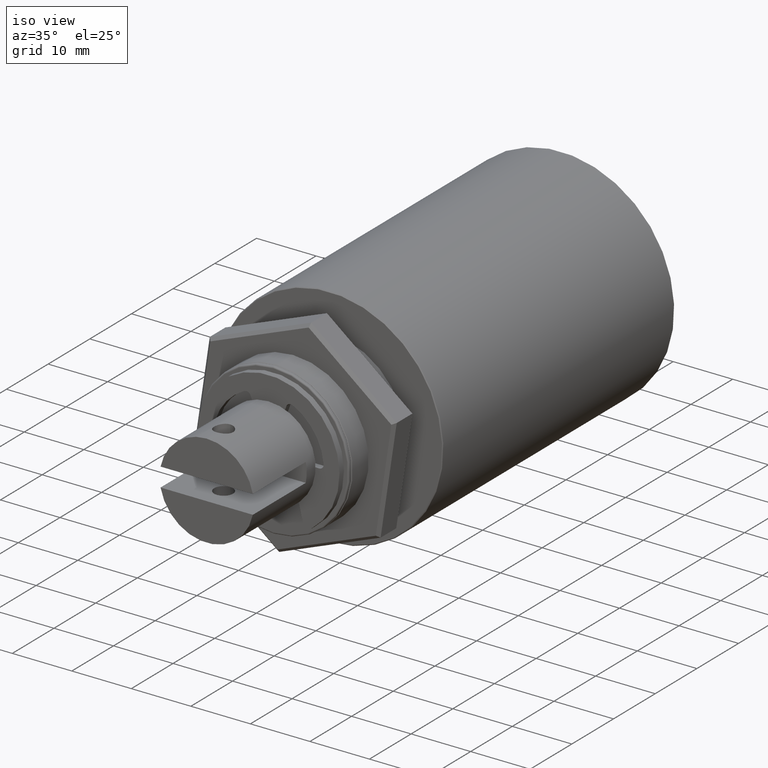
[diagram: clean part render]
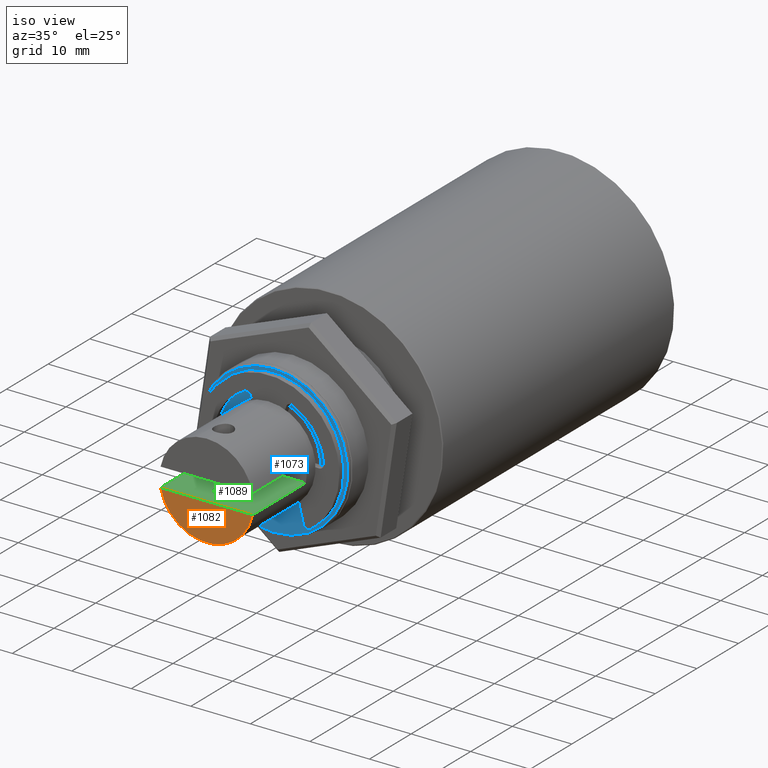
[diagram: same view with three faces highlighted in distinct colors, each labeled with its STEP entity id]
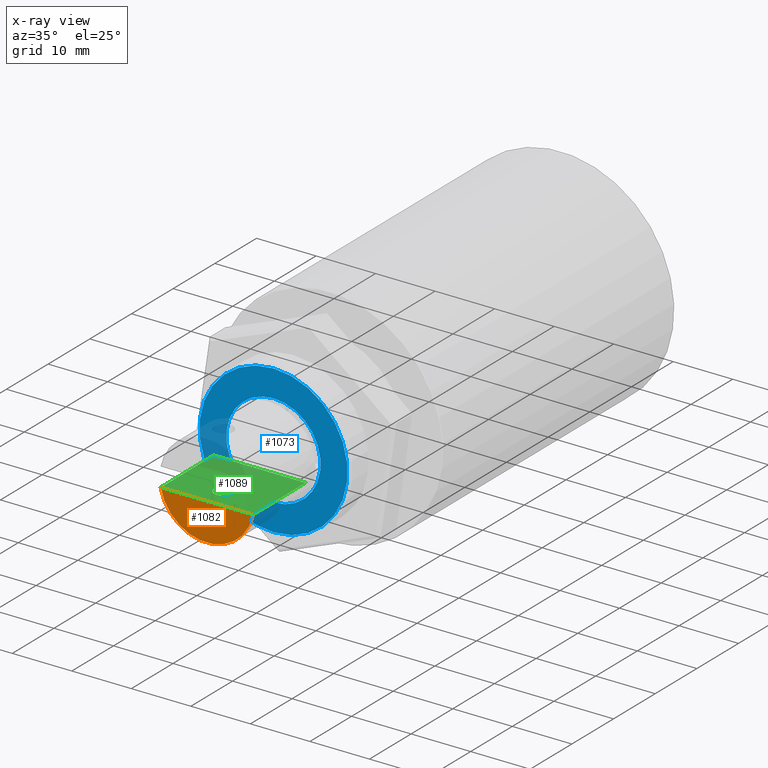
[diagram: x-ray of the same camera — body ghosted, the three highlighted faces saturated]
A machine part, iso view with three faces highlighted in distinct colors.
The next image is the same camera in x-ray (body ghosted, the three faces saturated) — at least one of them is partly hidden behind the body in this view.
Their STEP definitions:

[orange] entity #1082 — the highlighted planar face has unit normal (0, 1, -0).
#69=CIRCLE('',#1224,0.0079121);
#255=ORIENTED_EDGE('',*,*,#465,.T.);
#256=ORIENTED_EDGE('',*,*,#474,.T.);
#465=EDGE_CURVE('',#584,#583,#69,.T.);
#474=EDGE_CURVE('',#583,#584,#690,.T.);
#583=VERTEX_POINT('',#1804);
#584=VERTEX_POINT('',#1806);
#690=LINE('',#1827,#770);
#770=VECTOR('',#1466,1.);
#849=EDGE_LOOP('',(#255,#256));
#952=FACE_BOUND('',#849,.T.);
#1032=PLANE('',#1234);
#1082=ADVANCED_FACE('',(#952),#1032,.F.);
#1224=AXIS2_PLACEMENT_3D('',#1805,#1441,#1442);
#1234=AXIS2_PLACEMENT_3D('',#1826,#1464,#1465);
#1441=DIRECTION('',(0.,0.,-1.));
#1442=DIRECTION('',(-1.,0.,0.));
#1464=DIRECTION('',(0.,0.,1.));
#1465=DIRECTION('',(1.,0.,0.));
#1466=DIRECTION('',(0.,1.,0.));
#1804=CARTESIAN_POINT('',(0.0015875,-0.00775120443286075,-0.016764));
#1805=CARTESIAN_POINT('',(0.,0.,-0.016764));
#1806=CARTESIAN_POINT('',(0.0015875,0.00775120443286075,-0.016764));
#1826=CARTESIAN_POINT('',(0.00395605,0.,-0.016764));
#1827=CARTESIAN_POINT('',(0.0015875,0.,-0.016764));

[blue] entity #1073 — the highlighted planar face has unit normal (-0, -1, 0).
#63=CIRCLE('',#1212,0.0079121);
#64=CIRCLE('',#1214,0.012446);
#229=ORIENTED_EDGE('',*,*,#456,.T.);
#230=ORIENTED_EDGE('',*,*,#455,.F.);
#455=EDGE_CURVE('',#573,#573,#63,.T.);
#456=EDGE_CURVE('',#574,#574,#64,.T.);
#573=VERTEX_POINT('',#1759);
#574=VERTEX_POINT('',#1762);
#831=EDGE_LOOP('',(#229));
#832=EDGE_LOOP('',(#230));
#933=FACE_BOUND('',#831,.T.);
#934=FACE_BOUND('',#832,.T.);
#1030=PLANE('',#1213);
#1073=ADVANCED_FACE('',(#933,#934),#1030,.T.);
#1212=AXIS2_PLACEMENT_3D('',#1758,#1415,#1416);
#1213=AXIS2_PLACEMENT_3D('',#1760,#1417,#1418);
#1214=AXIS2_PLACEMENT_3D('',#1761,#1419,#1420);
#1415=DIRECTION('',(0.,0.,-1.));
#1416=DIRECTION('',(-1.,0.,0.));
#1417=DIRECTION('',(0.,0.,-1.));
#1418=DIRECTION('',(-1.,0.,0.));
#1419=DIRECTION('',(0.,0.,-1.));
#1420=DIRECTION('',(-1.,0.,0.));
#1758=CARTESIAN_POINT('',(0.,0.,-0.000743169806373116));
#1759=CARTESIAN_POINT('',(-0.0079121,0.,-0.000743169806373116));
#1760=CARTESIAN_POINT('',(0.01030605,0.,-0.000743169806373115));
#1761=CARTESIAN_POINT('',(0.,0.,-0.000743169806373115));
#1762=CARTESIAN_POINT('',(-0.012446,0.,-0.000743169806373115));

[green] entity #1089 — the highlighted planar face has unit normal (-0, 0, -1).
#77=CIRCLE('',#1241,0.0015875);
#274=ORIENTED_EDGE('',*,*,#477,.T.);
#275=ORIENTED_EDGE('',*,*,#479,.T.);
#276=ORIENTED_EDGE('',*,*,#466,.F.);
#277=ORIENTED_EDGE('',*,*,#474,.F.);
#278=ORIENTED_EDGE('',*,*,#464,.F.);
#464=EDGE_CURVE('',#582,#583,#686,.T.);
#466=EDGE_CURVE('',#584,#585,#687,.F.);
#474=EDGE_CURVE('',#583,#584,#690,.T.);
#477=EDGE_CURVE('',#594,#594,#77,.T.);
#479=EDGE_CURVE('',#582,#585,#692,.T.);
#582=VERTEX_POINT('',#1802);
#583=VERTEX_POINT('',#1804);
#584=VERTEX_POINT('',#1806);
#585=VERTEX_POINT('',#1808);
#594=VERTEX_POINT('',#1837);
#686=LINE('',#1803,#766);
#687=LINE('',#1807,#767);
#690=LINE('',#1827,#770);
#692=LINE('',#1840,#772);
#766=VECTOR('',#1440,1.);
#767=VECTOR('',#1443,1.);
#770=VECTOR('',#1466,1.);
#772=VECTOR('',#1484,1.);
#861=EDGE_LOOP('',(#274));
#862=EDGE_LOOP('',(#275,#276,#277,#278));
#964=FACE_BOUND('',#861,.T.);
#965=FACE_BOUND('',#862,.T.);
#1037=PLANE('',#1244);
#1089=ADVANCED_FACE('',(#964,#965),#1037,.F.);
#1241=AXIS2_PLACEMENT_3D('',#1836,#1479,#1480);
#1244=AXIS2_PLACEMENT_3D('',#1842,#1487,#1488);
#1440=DIRECTION('',(0.,0.,-1.));
#1443=DIRECTION('',(0.,0.,-1.));
#1466=DIRECTION('',(0.,1.,0.));
#1479=DIRECTION('',(1.,0.,0.));
#1480=DIRECTION('',(0.,0.,-1.));
#1484=DIRECTION('',(0.,1.,0.));
#1487=DIRECTION('',(1.,0.,0.));
#1488=DIRECTION('',(0.,1.,0.));
#1802=CARTESIAN_POINT('',(0.0015875,-0.00775120443286075,-0.004064));
#1803=CARTESIAN_POINT('',(0.0015875,-0.00775120443286075,0.0242510795972828));
#1804=CARTESIAN_POINT('',(0.0015875,-0.00775120443286075,-0.016764));
#1806=CARTESIAN_POINT('',(0.0015875,0.00775120443286075,-0.016764));
#1807=CARTESIAN_POINT('',(0.0015875,0.00775120443286075,0.0242510795972828));
#1808=CARTESIAN_POINT('',(0.0015875,0.00775120443286075,-0.004064));
#1827=CARTESIAN_POINT('',(0.0015875,0.,-0.016764));
#1836=CARTESIAN_POINT('',(0.0015875,2.16840434497101E-18,-0.0127));
#1837=CARTESIAN_POINT('',(0.0015875,2.16840434497101E-18,-0.0142875));
#1840=CARTESIAN_POINT('',(0.0015875,0.,-0.004064));
#1842=CARTESIAN_POINT('',(0.0015875,0.,-0.010414));